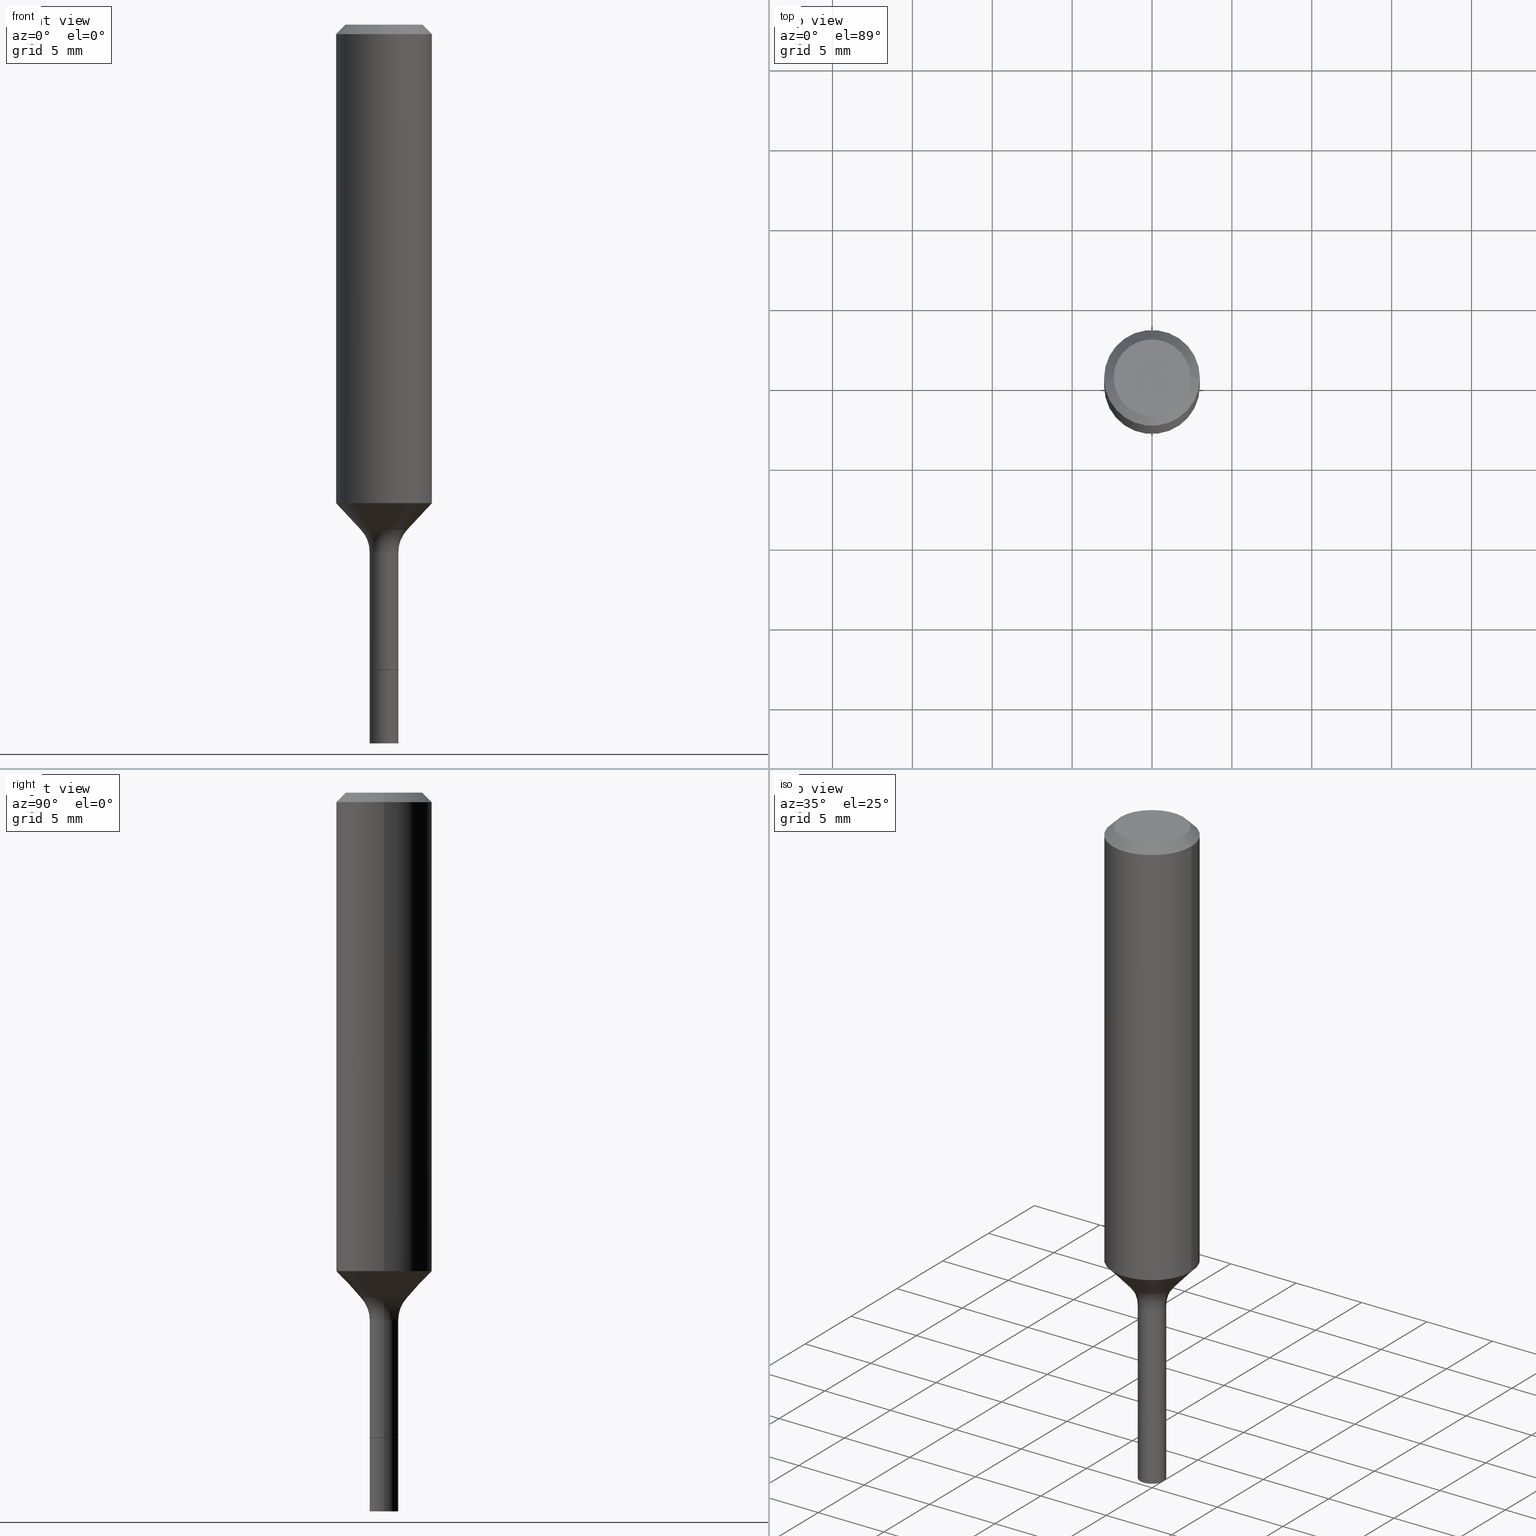
[diagram: canonical four-view strip — front | top / right | iso, engineering-drawing reading convention]
A machine part, canonical four-view strip (front | top / right | iso — engineering-drawing reading convention). The complete STEP part file that produces these views, byte-faithful:
ISO-10303-21;
HEADER;
FILE_DESCRIPTION (( 'STEP AP203' ),
    '1' );
FILE_NAME ('67063.STEP',
    '2025-04-01T15:27:15',
    ( '' ),
    ( '' ),
    'SwSTEP 2.0',
    'SolidWorks 2024',
    '' );
FILE_SCHEMA (( 'CONFIG_CONTROL_DESIGN' ));
ENDSEC;

DATA;
#1 = VECTOR ( 'NONE', #312, 39.37007874015748143 ) ;
#2 = COORDINATED_UNIVERSAL_TIME_OFFSET ( 5, 0, .BEHIND. ) ;
#3 = EDGE_CURVE ( 'NONE', #313, #306, #412, .T. ) ;
#4 = ORIENTED_EDGE ( 'NONE', *, *, #28, .T. ) ;
#5 = DIRECTION ( 'NONE',  ( 1.000000000000000000, -6.982962677686267499E-15, 0.000000000000000000 ) ) ;
#6 = EDGE_CURVE ( 'NONE', #144, #515, #182, .T. ) ;
#7 = APPROVAL_ROLE ( '' ) ;
#8 = CARTESIAN_POINT ( 'NONE',  ( 3.178375807398822119E-29, -4.537878296094436237E-15, -1.299700000000000077 ) ) ;
#9 = DIRECTION ( 'NONE',  ( 1.000000000000000000, -6.982962677686273021E-15, 0.000000000000000000 ) ) ;
#10 = DATE_AND_TIME ( #410, #62 ) ;
#11 = CARTESIAN_POINT ( 'NONE',  ( 3.890007229998696371E-29, -5.553899365697792335E-15, -1.590700000000000003 ) ) ;
#12 = DIRECTION ( 'NONE',  ( 1.000000000000000000, -6.982962677686266711E-15, 0.000000000000000000 ) ) ;
#13 = CIRCLE ( 'NONE', #432, 0.03495000000000000190 ) ;
#14 = CIRCLE ( 'NONE', #317, 0.07999999999999994615 ) ;
#15 = CARTESIAN_POINT ( 'NONE',  ( 0.000000000000000000, 0.000000000000000000, 0.000000000000000000 ) ) ;
#16 = EDGE_CURVE ( 'NONE', #393, #55, #269, .T. ) ;
#17 = ORIENTED_EDGE ( 'NONE', *, *, #87, .F. ) ;
#18 = CARTESIAN_POINT ( 'NONE',  ( 0.1180999999999999966, -8.926936027602933910E-16, -0.02362000000000013741 ) ) ;
#19 = DIRECTION ( 'NONE',  ( -2.445468806185136597E-29, 3.491481338843145583E-15, 1.000000000000000000 ) ) ;
#20 = APPROVAL_PERSON_ORGANIZATION ( #162, #23, #164 ) ;
#21 = CARTESIAN_POINT ( 'NONE',  ( -0.03545000000000005091, -5.302011965870836161E-15, -1.590700000000000003 ) ) ;
#22 = CYLINDRICAL_SURFACE ( 'NONE', #333, 0.03545000000000005091 ) ;
#23 = APPROVAL ( #484, 'UNSPECIFIED' ) ;
#24 = CARTESIAN_POINT ( 'NONE',  ( 0.000000000000000000, 0.000000000000000000, 0.000000000000000000 ) ) ;
#25 = CIRCLE ( 'NONE', #127, 0.03495000000000000190 ) ;
#26 = ORIENTED_EDGE ( 'NONE', *, *, #194, .T. ) ;
#27 = CC_DESIGN_SECURITY_CLASSIFICATION ( #136, ( #507 ) ) ;
#28 = EDGE_CURVE ( 'NONE', #55, #163, #118, .T. ) ;
#29 = CARTESIAN_POINT ( 'NONE',  ( 4.332637083918206427E-29, -6.185857488028401081E-15, -1.771700000000000053 ) ) ;
#30 = LINE ( 'NONE', #346, #1 ) ;
#31 = AXIS2_PLACEMENT_3D ( 'NONE', #246, #296, #47 ) ;
#32 = EDGE_LOOP ( 'NONE', ( #268, #254, #120, #155 ) ) ;
#33 = ORIENTED_EDGE ( 'NONE', *, *, #299, .T. ) ;
#34 = APPROVAL ( #446, 'UNSPECIFIED' ) ;
#35 = PERSON_AND_ORGANIZATION_ROLE ( 'design_owner' ) ;
#36 = VERTEX_POINT ( 'NONE', #212 ) ;
#37 = CALENDAR_DATE ( 2025, 1, 4 ) ;
#38 = ADVANCED_FACE ( 'NONE', ( #126 ), #178, .F. ) ;
#39 = VECTOR ( 'NONE', #257, 39.37007874015748143 ) ;
#40 = VERTEX_POINT ( 'NONE', #174 ) ;
#41 = CIRCLE ( 'NONE', #490, 0.05694170387046649379 ) ;
#42 = CARTESIAN_POINT ( 'NONE',  ( 0.03545000000000010643, -6.433403514952379754E-15, -1.771700000000000053 ) ) ;
#43 = CARTESIAN_POINT ( 'NONE',  ( 3.890007229998696371E-29, -5.553899365697792335E-15, -1.590700000000000003 ) ) ;
#44 = APPROVAL_ROLE ( '' ) ;
#45 = EDGE_CURVE ( 'NONE', #40, #214, #288, .T. ) ;
#46 = DIRECTION ( 'NONE',  ( -0.7071067811865461294, 2.468850131082242072E-15, -0.7071067811865489050 ) ) ;
#47 = DIRECTION ( 'NONE',  ( 1.000000000000000000, -6.982962677686273021E-15, 0.000000000000000000 ) ) ;
#48 = CIRCLE ( 'NONE', #483, 0.1181000000000001354 ) ;
#49 = CARTESIAN_POINT ( 'NONE',  ( 3.044951350166641227E-29, -4.347383532312049754E-15, -1.245140131195000333 ) ) ;
#50 = CARTESIAN_POINT ( 'NONE',  ( 0.03545000000000000234, -5.801445392621770218E-15, -1.590700000000000003 ) ) ;
#51 = EDGE_CURVE ( 'NONE', #185, #190, #180, .T. ) ;
#52 = DIRECTION ( 'NONE',  ( -2.445468806185136597E-29, 3.491481338843145583E-15, 1.000000000000000000 ) ) ;
#53 = FACE_OUTER_BOUND ( 'NONE', #440, .T. ) ;
#54 = CARTESIAN_POINT ( 'NONE',  ( 0.03545000000000000234, -5.799699651952348715E-15, -1.590200000000000058 ) ) ;
#55 = VERTEX_POINT ( 'NONE', #422 ) ;
#56 = FACE_OUTER_BOUND ( 'NONE', #435, .T. ) ;
#57 = DIRECTION ( 'NONE',  ( -6.982962677686266711E-15, -1.000000000000000000, 3.491481338843145583E-15 ) ) ;
#58 = ORIENTED_EDGE ( 'NONE', *, *, #28, .F. ) ;
#59 = DIRECTION ( 'NONE',  ( 1.000000000000000000, -6.982962677686267499E-15, 0.000000000000000000 ) ) ;
#60 = DIRECTION ( 'NONE',  ( -1.000000000000000000, 6.982962677686266711E-15, 0.000000000000000000 ) ) ;
#61 = EDGE_CURVE ( 'NONE', #306, #313, #314, .T. ) ;
#62 = LOCAL_TIME ( 11, 27, 15.00000000000000000, #289 ) ;
#63 = ORIENTED_EDGE ( 'NONE', *, *, #265, .F. ) ;
#64 = DIRECTION ( 'NONE',  ( 1.000000000000000000, -6.982962677686254089E-15, 0.000000000000000000 ) ) ;
#65 = DIRECTION ( 'NONE',  ( -2.445468806185136597E-29, 3.491481338843145583E-15, 1.000000000000000000 ) ) ;
#66 = FACE_OUTER_BOUND ( 'NONE', #404, .T. ) ;
#67 = CIRCLE ( 'NONE', #152, 0.03545000000000010643 ) ;
#68 = CARTESIAN_POINT ( 'NONE',  ( 2.884567129420502109E-29, -4.118397371309408628E-15, -1.179555888067264524 ) ) ;
#69 = ORIENTED_EDGE ( 'NONE', *, *, #45, .T. ) ;
#70 = DIRECTION ( 'NONE',  ( -2.445468806185136597E-29, 3.491481338843145583E-15, 1.000000000000000000 ) ) ;
#71 = ORIENTED_EDGE ( 'NONE', *, *, #87, .T. ) ;
#72 = SECURITY_CLASSIFICATION_LEVEL ( 'unclassified' ) ;
#73 = CONICAL_SURFACE ( 'NONE', #160, 0.05694170387046649379, 0.7504915783575608623 ) ;
#74 = ORIENTED_EDGE ( 'NONE', *, *, #16, .F. ) ;
#75 =( NAMED_UNIT ( * ) PLANE_ANGLE_UNIT ( ) SI_UNIT ( $, .RADIAN. ) );
#76 = EDGE_LOOP ( 'NONE', ( #509, #444, #327, #506 ) ) ;
#77 = ADVANCED_FACE ( 'NONE', ( #458 ), #141, .T. ) ;
#78 = PERSON_AND_ORGANIZATION ( #273, #292 ) ;
#79 = AXIS2_PLACEMENT_3D ( 'NONE', #330, #234, #125 ) ;
#80 = ORIENTED_EDGE ( 'NONE', *, *, #338, .T. ) ;
#81 = ADVANCED_BREP_SHAPE_REPRESENTATION ( '67063', ( #124, #294, #79 ), #320 ) ;
#82 = PERSON_AND_ORGANIZATION ( #273, #292 ) ;
#83 = FACE_OUTER_BOUND ( 'NONE', #279, .T. ) ;
#84 = CIRCLE ( 'NONE', #503, 0.03544999999999996071 ) ;
#85 = CONICAL_SURFACE ( 'NONE', #450, 0.03495000000000000190, 0.7853981633975507526 ) ;
#86 = CALENDAR_DATE ( 2025, 1, 4 ) ;
#87 = EDGE_CURVE ( 'NONE', #36, #387, #301, .T. ) ;
#88 = DIRECTION ( 'NONE',  ( -2.445468806185136597E-29, 3.491481338843145583E-15, 1.000000000000000000 ) ) ;
#89 = PLANE ( 'NONE',  #224 ) ;
#90 = TOROIDAL_SURFACE ( 'NONE', #307, 0.1154499999999999832, 0.07999999999999994615 ) ;
#91 = CARTESIAN_POINT ( 'NONE',  ( 3.178375807398822119E-29, -4.537878296094436237E-15, -1.299700000000000077 ) ) ;
#92 = EDGE_CURVE ( 'NONE', #323, #266, #362, .T. ) ;
#93 = CARTESIAN_POINT ( 'NONE',  ( -0.03544999999999996071, -4.793128560734448544E-15, -1.299700000000000077 ) ) ;
#94 = DIRECTION ( 'NONE',  ( -1.000000000000000000, 6.982962677686266711E-15, 0.000000000000000000 ) ) ;
#95 = CARTESIAN_POINT ( 'NONE',  ( -0.05694170387046649379, -3.942788391842422324E-15, -1.245140131195000333 ) ) ;
#96 = APPROVAL_DATE_TIME ( #10, #34 ) ;
#97 = CARTESIAN_POINT ( 'NONE',  ( 7.545787641473140628E-46, -1.077338491108201769E-31, -3.085620075131671975E-17 ) ) ;
#98 = DIRECTION ( 'NONE',  ( -2.445468806185136597E-29, 3.491481338843145583E-15, 1.000000000000000000 ) ) ;
#99 = AXIS2_PLACEMENT_3D ( 'NONE', #8, #167, #334 ) ;
#100 = CARTESIAN_POINT ( 'NONE',  ( 5.776197320209326656E-31, -8.246878922347558061E-17, -0.02362000000000013741 ) ) ;
#101 = ADVANCED_FACE ( 'NONE', ( #139 ), #456, .T. ) ;
#102 = ORIENTED_EDGE ( 'NONE', *, *, #491, .T. ) ;
#103 = CARTESIAN_POINT ( 'NONE',  ( 0.09447999999999998066, -7.704367267948738690E-16, -3.085620075131172158E-17 ) ) ;
#104 = ORIENTED_EDGE ( 'NONE', *, *, #326, .F. ) ;
#105 = DIRECTION ( 'NONE',  ( -2.445468806185136597E-29, 3.491481338843145583E-15, 1.000000000000000000 ) ) ;
#106 = ORIENTED_EDGE ( 'NONE', *, *, #276, .F. ) ;
#107 = DIRECTION ( 'NONE',  ( -2.445468806185136597E-29, 3.491481338843145583E-15, 1.000000000000000000 ) ) ;
#108 = CLOSED_SHELL ( 'NONE', ( #77, #157, #175, #433, #414, #395, #345, #283, #110, #149, #101, #290, #229, #469 ) ) ;
#109 = ORIENTED_EDGE ( 'NONE', *, *, #187, .T. ) ;
#110 = ADVANCED_FACE ( 'NONE', ( #375 ), #390, .T. ) ;
#111 = DIRECTION ( 'NONE',  ( 1.000000000000000000, -6.982962677686262766E-15, 0.000000000000000000 ) ) ;
#112 = ORIENTED_EDGE ( 'NONE', *, *, #514, .T. ) ;
#113 = PERSON_AND_ORGANIZATION_ROLE ( 'creator' ) ;
#114 = ORIENTED_EDGE ( 'NONE', *, *, #61, .T. ) ;
#115 = DATE_TIME_ROLE ( 'classification_date' ) ;
#116 = EDGE_CURVE ( 'NONE', #214, #190, #172, .T. ) ;
#117 = TOROIDAL_SURFACE ( 'NONE', #99, 0.1154499999999999832, 0.07999999999999994615 ) ;
#118 = LINE ( 'NONE', #402, #472 ) ;
#119 = CALENDAR_DATE ( 2025, 1, 4 ) ;
#120 = ORIENTED_EDGE ( 'NONE', *, *, #51, .T. ) ;
#121 = PERSON_AND_ORGANIZATION ( #273, #292 ) ;
#122 = APPROVAL_PERSON_ORGANIZATION ( #78, #423, #44 ) ;
#123 = DIRECTION ( 'NONE',  ( 1.000000000000000000, -6.982962677686273021E-15, 0.000000000000000000 ) ) ;
#124 = MANIFOLD_SOLID_BREP ( 'Body-Move/Copy2[1]', #270 ) ;
#125 = DIRECTION ( 'NONE',  ( 1.000000000000000000, 0.000000000000000000, 0.000000000000000000 ) ) ;
#126 = FACE_OUTER_BOUND ( 'NONE', #445, .T. ) ;
#127 = AXIS2_PLACEMENT_3D ( 'NONE', #471, #430, #59 ) ;
#128 = CARTESIAN_POINT ( 'NONE',  ( 4.332637083918206427E-29, -6.185857488028401081E-15, -1.771700000000000053 ) ) ;
#129 = CC_DESIGN_DATE_AND_TIME_ASSIGNMENT ( #328, #115, ( #136 ) ) ;
#130 = LINE ( 'NONE', #250, #339 ) ;
#131 = EDGE_CURVE ( 'NONE', #40, #185, #13, .T. ) ;
#132 = DIRECTION ( 'NONE',  ( 2.438088387897960049E-29, -3.491481338843145188E-15, -1.000000000000000000 ) ) ;
#133 = DIRECTION ( 'NONE',  ( 1.000000000000000000, -6.982962677686254089E-15, 0.000000000000000000 ) ) ;
#134 = CARTESIAN_POINT ( 'NONE',  ( 3.178375807398822119E-29, -4.537878296094436237E-15, -1.299700000000000077 ) ) ;
#135 = DIRECTION ( 'NONE',  ( 1.000000000000000000, -6.982962677686254089E-15, 0.000000000000000000 ) ) ;
#136 = SECURITY_CLASSIFICATION ( '', '', #72 ) ;
#137 = EDGE_CURVE ( 'NONE', #55, #393, #442, .T. ) ;
#138 = DIRECTION ( 'NONE',  ( -2.445468806185136597E-29, 3.491481338843145583E-15, 1.000000000000000000 ) ) ;
#139 = FACE_OUTER_BOUND ( 'NONE', #363, .T. ) ;
#140 = ORIENTED_EDGE ( 'NONE', *, *, #137, .F. ) ;
#141 = CONICAL_SURFACE ( 'NONE', #441, 0.03495000000000000190, 0.7853981633975507526 ) ;
#142 = DIRECTION ( 'NONE',  ( 1.000000000000000000, -6.982962677686266711E-15, 0.000000000000000000 ) ) ;
#143 = AXIS2_PLACEMENT_3D ( 'NONE', #457, #52, #12 ) ;
#144 = VERTEX_POINT ( 'NONE', #418 ) ;
#145 = CYLINDRICAL_SURFACE ( 'NONE', #287, 0.03544999999999998153 ) ;
#146 = APPLICATION_CONTEXT ( 'configuration controlled 3d designs of mechanical parts and assemblies' ) ;
#147 = CC_DESIGN_APPROVAL ( #423, ( #309 ) ) ;
#148 = ORIENTED_EDGE ( 'NONE', *, *, #383, .F. ) ;
#149 = ADVANCED_FACE ( 'NONE', ( #53 ), #377, .T. ) ;
#150 = CARTESIAN_POINT ( 'NONE',  ( 0.05694170387046649379, -4.745005325243381161E-15, -1.245140131195000333 ) ) ;
#151 = AXIS2_PLACEMENT_3D ( 'NONE', #29, #517, #277 ) ;
#152 = AXIS2_PLACEMENT_3D ( 'NONE', #310, #223, #391 ) ;
#153 = CIRCLE ( 'NONE', #173, 0.1180999999999999966 ) ;
#154 = ORIENTED_EDGE ( 'NONE', *, *, #460, .T. ) ;
#155 = ORIENTED_EDGE ( 'NONE', *, *, #116, .F. ) ;
#156 = PERSON_AND_ORGANIZATION_ROLE ( 'classification_officer' ) ;
#157 = ADVANCED_FACE ( 'NONE', ( #244 ), #272, .T. ) ;
#158 = DIRECTION ( 'NONE',  ( -2.445468806185136597E-29, 3.491481338843145583E-15, 1.000000000000000000 ) ) ;
#159 = APPLICATION_PROTOCOL_DEFINITION ( 'international standard', 'config_control_design', 1994, #319 ) ;
#160 = AXIS2_PLACEMENT_3D ( 'NONE', #189, #351, #226 ) ;
#161 = ORIENTED_EDGE ( 'NONE', *, *, #222, .T. ) ;
#162 = PERSON_AND_ORGANIZATION ( #273, #292 ) ;
#163 = VERTEX_POINT ( 'NONE', #386 ) ;
#164 = APPROVAL_ROLE ( '' ) ;
#165 = CARTESIAN_POINT ( 'NONE',  ( 0.1154499999999999832, -5.344061337233315773E-15, -1.299700000000000077 ) ) ;
#166 = AXIS2_PLACEMENT_3D ( 'NONE', #204, #304, #94 ) ;
#167 = DIRECTION ( 'NONE',  ( -2.445468806185136597E-29, 3.491481338843145583E-15, 1.000000000000000000 ) ) ;
#168 = ADVANCED_FACE ( 'NONE', ( #366 ), #22, .T. ) ;
#169 = CARTESIAN_POINT ( 'NONE',  ( 3.772893820736570314E-46, -5.386692455541008845E-32, -1.542810037565835988E-17 ) ) ;
#170 = DIRECTION ( 'NONE',  ( -2.445468806185136877E-29, 3.491481338843145188E-15, 1.000000000000000000 ) ) ;
#171 = CARTESIAN_POINT ( 'NONE',  ( 3.888784495595604691E-29, -5.552153625028370831E-15, -1.590200000000000058 ) ) ;
#172 = CIRCLE ( 'NONE', #192, 0.03545000000000000234 ) ;
#173 = AXIS2_PLACEMENT_3D ( 'NONE', #467, #138, #142 ) ;
#174 = CARTESIAN_POINT ( 'NONE',  ( -0.03495000000000000190, -5.302915452375525859E-15, -1.590700000000000003 ) ) ;
#175 = ADVANCED_FACE ( 'NONE', ( #83 ), #489, .T. ) ;
#176 = ORIENTED_EDGE ( 'NONE', *, *, #479, .T. ) ;
#177 = DIRECTION ( 'NONE',  ( -2.445468806185136597E-29, 3.491481338843145583E-15, 1.000000000000000000 ) ) ;
#178 = PLANE ( 'NONE',  #305 ) ;
#179 = FACE_OUTER_BOUND ( 'NONE', #281, .T. ) ;
#180 = LINE ( 'NONE', #216, #405 ) ;
#181 = ORIENTED_EDGE ( 'NONE', *, *, #373, .F. ) ;
#182 = CIRCLE ( 'NONE', #151, 0.03545000000000010643 ) ;
#183 = CARTESIAN_POINT ( 'NONE',  ( 3.888784495595604691E-29, -5.552153625028370831E-15, -1.590200000000000058 ) ) ;
#184 = AXIS2_PLACEMENT_3D ( 'NONE', #355, #397, #475 ) ;
#185 = VERTEX_POINT ( 'NONE', #218 ) ;
#186 = CARTESIAN_POINT ( 'NONE',  ( -0.1181000000000001354, -3.279246400376729248E-15, -1.179555888067264524 ) ) ;
#187 = EDGE_CURVE ( 'NONE', #36, #462, #48, .T. ) ;
#188 = ORIENTED_EDGE ( 'NONE', *, *, #239, .T. ) ;
#189 = CARTESIAN_POINT ( 'NONE',  ( 3.044951350166641227E-29, -4.347383532312049754E-15, -1.245140131195000333 ) ) ;
#190 = VERTEX_POINT ( 'NONE', #54 ) ;
#191 = DIRECTION ( 'NONE',  ( -1.000000000000000000, 7.105427357601003436E-15, 0.000000000000000000 ) ) ;
#192 = AXIS2_PLACEMENT_3D ( 'NONE', #171, #213, #135 ) ;
#193 = ORIENTED_EDGE ( 'NONE', *, *, #514, .F. ) ;
#194 = EDGE_CURVE ( 'NONE', #311, #462, #459, .T. ) ;
#195 = APPROVAL_STATUS ( 'not_yet_approved' ) ;
#196 = CARTESIAN_POINT ( 'NONE',  ( 3.890007229998696371E-29, -5.553899365697792335E-15, -1.590700000000000003 ) ) ;
#197 = ORIENTED_EDGE ( 'NONE', *, *, #439, .F. ) ;
#198 = PERSON_AND_ORGANIZATION_ROLE ( 'creator' ) ;
#199 = PRODUCT_RELATED_PRODUCT_CATEGORY ( 'detail', '', ( #210 ) ) ;
#200 = AXIS2_PLACEMENT_3D ( 'NONE', #165, #57, #382 ) ;
#201 = ORIENTED_EDGE ( 'NONE', *, *, #400, .T. ) ;
#202 = APPLICATION_PROTOCOL_DEFINITION ( 'international standard', 'config_control_design', 1994, #146 ) ;
#203 = ADVANCED_FACE ( 'NONE', ( #342 ), #409, .T. ) ;
#204 = CARTESIAN_POINT ( 'NONE',  ( 5.776197320209326656E-31, -8.246878922347558061E-17, -0.02362000000000013741 ) ) ;
#205 =( CONVERSION_BASED_UNIT ( 'INCH', #443 ) LENGTH_UNIT ( ) NAMED_UNIT ( #371 ) );
#206 = APPROVAL_PERSON_ORGANIZATION ( #284, #34, #7 ) ;
#207 = FACE_OUTER_BOUND ( 'NONE', #356, .T. ) ;
#208 = CIRCLE ( 'NONE', #473, 0.03544999999999996071 ) ;
#209 = CC_DESIGN_PERSON_AND_ORGANIZATION_ASSIGNMENT ( #236, #198, ( #309 ) ) ;
#210 = PRODUCT ( '67063', '67063', '', ( #401 ) ) ;
#211 = CARTESIAN_POINT ( 'NONE',  ( -0.05694170387046643828, -3.942788391842422324E-15, -1.245140131195000333 ) ) ;
#212 = CARTESIAN_POINT ( 'NONE',  ( 0.1181000000000001354, -4.943085263544158468E-15, -1.179555888067264524 ) ) ;
#213 = DIRECTION ( 'NONE',  ( -2.445468806185136597E-29, 3.491481338843145583E-15, 1.000000000000000000 ) ) ;
#214 = VERTEX_POINT ( 'NONE', #495 ) ;
#215 = DIRECTION ( 'NONE',  ( -0.6819983600624978104, 7.399397606724286576E-15, 0.7313537016191710149 ) ) ;
#216 = CARTESIAN_POINT ( 'NONE',  ( 0.03495000000000000190, -5.797953911282927211E-15, -1.590700000000000003 ) ) ;
#217 = ORIENTED_EDGE ( 'NONE', *, *, #3, .F. ) ;
#218 = CARTESIAN_POINT ( 'NONE',  ( 0.03495000000000000190, -5.797953911282927211E-15, -1.590700000000000003 ) ) ;
#219 = DIRECTION ( 'NONE',  ( -2.445468806185136877E-29, 3.491481338843145188E-15, 1.000000000000000000 ) ) ;
#220 = DIRECTION ( 'NONE',  ( 1.000000000000000000, -6.982962677686267499E-15, 4.875432709231658792E-29 ) ) ;
#221 = DIRECTION ( 'NONE',  ( 1.000000000000000000, -6.982962677686266711E-15, 4.876176775795936914E-29 ) ) ;
#222 = EDGE_CURVE ( 'NONE', #323, #311, #41, .T. ) ;
#223 = DIRECTION ( 'NONE',  ( -2.445468806185136597E-29, 3.491481338843145583E-15, 1.000000000000000000 ) ) ;
#224 = AXIS2_PLACEMENT_3D ( 'NONE', #381, #493, #411 ) ;
#225 = EDGE_LOOP ( 'NONE', ( #480, #69, #181, #429 ) ) ;
#226 = DIRECTION ( 'NONE',  ( 1.000000000000000000, -6.982962677686273021E-15, 0.000000000000000000 ) ) ;
#227 = VERTEX_POINT ( 'NONE', #93 ) ;
#228 = CYLINDRICAL_SURFACE ( 'NONE', #184, 0.03544999999999998153 ) ;
#229 = ADVANCED_FACE ( 'NONE', ( #56 ), #89, .F. ) ;
#230 = ORIENTED_EDGE ( 'NONE', *, *, #326, .T. ) ;
#231 = PERSON_AND_ORGANIZATION ( #273, #292 ) ;
#232 = AXIS2_PLACEMENT_3D ( 'NONE', #183, #105, #64 ) ;
#233 = ORIENTED_EDGE ( 'NONE', *, *, #3, .T. ) ;
#234 = DIRECTION ( 'NONE',  ( 0.000000000000000000, 0.000000000000000000, 1.000000000000000000 ) ) ;
#235 = DIRECTION ( 'NONE',  ( 1.000000000000000000, -6.982962677686267499E-15, 4.875432709231658792E-29 ) ) ;
#236 = PERSON_AND_ORGANIZATION ( #273, #292 ) ;
#237 = EDGE_LOOP ( 'NONE', ( #350, #262 ) ) ;
#238 = DATE_AND_TIME ( #86, #245 ) ;
#239 = EDGE_CURVE ( 'NONE', #393, #387, #367, .T. ) ;
#240 = AXIS2_PLACEMENT_3D ( 'NONE', #261, #487, #123 ) ;
#241 = VECTOR ( 'NONE', #352, 39.37007874015748143 ) ;
#242 = CARTESIAN_POINT ( 'NONE',  ( 3.890007229998696371E-29, -5.553899365697792335E-15, -1.590700000000000003 ) ) ;
#243 = DATE_AND_TIME ( #37, #264 ) ;
#244 = FACE_OUTER_BOUND ( 'NONE', #341, .T. ) ;
#245 = LOCAL_TIME ( 11, 27, 15.00000000000000000, #478 ) ;
#246 = CARTESIAN_POINT ( 'NONE',  ( 3.044951350166641227E-29, -4.347383532312049754E-15, -1.245140131195000333 ) ) ;
#247 = ADVANCED_FACE ( 'NONE', ( #251 ), #335, .T. ) ;
#248 = AXIS2_PLACEMENT_3D ( 'NONE', #196, #357, #396 ) ;
#249 = VECTOR ( 'NONE', #316, 39.37007874015748854 ) ;
#250 = CARTESIAN_POINT ( 'NONE',  ( -0.03544999999999998153, 2.518873998269553846E-16, -1.743762489495363388E-30 ) ) ;
#251 = FACE_OUTER_BOUND ( 'NONE', #353, .T. ) ;
#252 = DIRECTION ( 'NONE',  ( 1.000000000000000000, -6.982962677686267499E-15, 0.000000000000000000 ) ) ;
#253 = CARTESIAN_POINT ( 'NONE',  ( 2.884567129420502109E-29, -4.118397371309408628E-15, -1.179555888067264524 ) ) ;
#254 = ORIENTED_EDGE ( 'NONE', *, *, #131, .T. ) ;
#255 = PRODUCT_DEFINITION_SHAPE ( 'NONE', 'NONE',  #309 ) ;
#256 = SHAPE_DEFINITION_REPRESENTATION ( #255, #81 ) ;
#257 = DIRECTION ( 'NONE',  ( -0.7071067811866199593, 7.493145998870616062E-15, 0.7071067811864750752 ) ) ;
#258 = ORIENTED_EDGE ( 'NONE', *, *, #194, .F. ) ;
#259 = AXIS2_PLACEMENT_3D ( 'NONE', #293, #177, #492 ) ;
#260 = CARTESIAN_POINT ( 'NONE',  ( 0.03545000000000005091, -5.801445392621771007E-15, -1.590700000000000003 ) ) ;
#261 = CARTESIAN_POINT ( 'NONE',  ( 3.044951350166641227E-29, -4.347383532312049754E-15, -1.245140131195000333 ) ) ;
#262 = ORIENTED_EDGE ( 'NONE', *, *, #16, .T. ) ;
#263 = DIRECTION ( 'NONE',  ( -2.445468806185136877E-29, 3.491481338843145188E-15, 1.000000000000000000 ) ) ;
#264 = LOCAL_TIME ( 11, 27, 15.00000000000000000, #2 ) ;
#265 = EDGE_CURVE ( 'NONE', #266, #227, #208, .T. ) ;
#266 = VERTEX_POINT ( 'NONE', #452 ) ;
#267 = DIRECTION ( 'NONE',  ( -2.445468806185136597E-29, 3.491481338843145583E-15, 1.000000000000000000 ) ) ;
#268 = ORIENTED_EDGE ( 'NONE', *, *, #45, .F. ) ;
#269 = CIRCLE ( 'NONE', #465, 0.09447999999999998066 ) ;
#270 = CLOSED_SHELL ( 'NONE', ( #247, #203, #168, #38 ) ) ;
#271 = DIRECTION ( 'NONE',  ( 1.000000000000000000, -6.982962677686267499E-15, 0.000000000000000000 ) ) ;
#272 = CONICAL_SURFACE ( 'NONE', #315, 0.1180999999999999966, 0.7853981633974463916 ) ;
#273 = PERSON ( 'UNSPECIFIED', 'UNSPECIFIED', 'UNSPECIFIED', ('UNSPECIFIED'), ('UNSPECIFIED'), ('UNSPECIFIED') ) ;
#274 = ORIENTED_EDGE ( 'NONE', *, *, #92, .F. ) ;
#275 = DIRECTION ( 'NONE',  ( 1.000000000000000000, -6.982962677686265133E-15, 0.000000000000000000 ) ) ;
#276 = EDGE_CURVE ( 'NONE', #311, #323, #348, .T. ) ;
#277 = DIRECTION ( 'NONE',  ( 1.000000000000000000, -6.982962677686261977E-15, 0.000000000000000000 ) ) ;
#278 = UNCERTAINTY_MEASURE_WITH_UNIT (LENGTH_MEASURE( 1.000000000000000082E-05 ), #205, 'distance_accuracy_value', 'NONE');
#279 = EDGE_LOOP ( 'NONE', ( #109, #176, #104, #17 ) ) ;
#280 = CIRCLE ( 'NONE', #232, 0.03545000000000000234 ) ;
#281 = EDGE_LOOP ( 'NONE', ( #399, #33, #63, #197 ) ) ;
#282 = ORIENTED_EDGE ( 'NONE', *, *, #239, .F. ) ;
#283 = ADVANCED_FACE ( 'NONE', ( #207 ), #117, .F. ) ;
#284 = PERSON_AND_ORGANIZATION ( #273, #292 ) ;
#285 = DIRECTION ( 'NONE',  ( -2.445468806185136597E-29, 3.491481338843145583E-15, 1.000000000000000000 ) ) ;
#286 = CALENDAR_DATE ( 2025, 1, 4 ) ;
#287 = AXIS2_PLACEMENT_3D ( 'NONE', #24, #501, #221 ) ;
#288 = LINE ( 'NONE', #407, #39 ) ;
#289 = COORDINATED_UNIVERSAL_TIME_OFFSET ( 5, 0, .BEHIND. ) ;
#290 = ADVANCED_FACE ( 'NONE', ( #453 ), #370, .F. ) ;
#291 = DIRECTION ( 'NONE',  ( 1.000000000000000000, -6.982962677686262766E-15, 0.000000000000000000 ) ) ;
#292 = ORGANIZATION ( 'UNSPECIFIED', 'UNSPECIFIED', '' ) ;
#293 = CARTESIAN_POINT ( 'NONE',  ( 3.890007229998696371E-29, -5.553899365697792335E-15, -1.590700000000000003 ) ) ;
#294 = MANIFOLD_SOLID_BREP ( 'Body-Move/Copy2[2]', #108 ) ;
#295 = AXIS2_PLACEMENT_3D ( 'NONE', #15, #19, #496 ) ;
#296 = DIRECTION ( 'NONE',  ( -2.445468806185136597E-29, 3.491481338843145583E-15, 1.000000000000000000 ) ) ;
#297 = DIRECTION ( 'NONE',  ( -2.445468806185136877E-29, 3.491481338843145188E-15, 1.000000000000000000 ) ) ;
#298 = DIRECTION ( 'NONE',  ( 1.000000000000000000, -6.982962677686265133E-15, 0.000000000000000000 ) ) ;
#299 = EDGE_CURVE ( 'NONE', #214, #227, #130, .T. ) ;
#300 = CC_DESIGN_APPROVAL ( #23, ( #507 ) ) ;
#301 = LINE ( 'NONE', #461, #368 ) ;
#302 = ORIENTED_EDGE ( 'NONE', *, *, #6, .F. ) ;
#303 = LINE ( 'NONE', #260, #513 ) ;
#304 = DIRECTION ( 'NONE',  ( 2.445468806185136597E-29, -3.491481338843145583E-15, -1.000000000000000000 ) ) ;
#305 = AXIS2_PLACEMENT_3D ( 'NONE', #43, #499, #494 ) ;
#306 = VERTEX_POINT ( 'NONE', #415 ) ;
#307 = AXIS2_PLACEMENT_3D ( 'NONE', #504, #267, #388 ) ;
#308 = CARTESIAN_POINT ( 'NONE',  ( -0.1154499999999999832, -3.717556707659400199E-15, -1.299700000000000077 ) ) ;
#309 = PRODUCT_DEFINITION ( 'UNKNOWN', '', #507, #477 ) ;
#310 = CARTESIAN_POINT ( 'NONE',  ( 4.332637083918206427E-29, -6.185857488028401081E-15, -1.771700000000000053 ) ) ;
#311 = VERTEX_POINT ( 'NONE', #211 ) ;
#312 = DIRECTION ( 'NONE',  ( -2.445468806185136877E-29, 3.491481338843145188E-15, 1.000000000000000000 ) ) ;
#313 = VERTEX_POINT ( 'NONE', #50 ) ;
#314 = CIRCLE ( 'NONE', #448, 0.03545000000000000234 ) ;
#315 = AXIS2_PLACEMENT_3D ( 'NONE', #100, #343, #60 ) ;
#316 = DIRECTION ( 'NONE',  ( 0.6819983600624978104, -2.208861293262468309E-15, 0.7313537016191710149 ) ) ;
#317 = AXIS2_PLACEMENT_3D ( 'NONE', #308, #385, #191 ) ;
#318 = EDGE_LOOP ( 'NONE', ( #258, #485, #201, #384 ) ) ;
#319 = APPLICATION_CONTEXT ( 'configuration controlled 3d designs of mechanical parts and assemblies' ) ;
#320 =( GEOMETRIC_REPRESENTATION_CONTEXT ( 3 ) GLOBAL_UNCERTAINTY_ASSIGNED_CONTEXT ( ( #278 ) ) GLOBAL_UNIT_ASSIGNED_CONTEXT ( ( #205, #75, #358 ) ) REPRESENTATION_CONTEXT ( 'NONE', 'WORKASPACE' ) );
#321 = ORIENTED_EDGE ( 'NONE', *, *, #187, .F. ) ;
#322 = COORDINATED_UNIVERSAL_TIME_OFFSET ( 5, 0, .BEHIND. ) ;
#323 = VERTEX_POINT ( 'NONE', #336 ) ;
#324 = APPROVAL_DATE_TIME ( #361, #423 ) ;
#325 = AXIS2_PLACEMENT_3D ( 'NONE', #169, #417, #374 ) ;
#326 = EDGE_CURVE ( 'NONE', #387, #163, #354, .T. ) ;
#327 = ORIENTED_EDGE ( 'NONE', *, *, #439, .T. ) ;
#328 = DATE_AND_TIME ( #119, #416 ) ;
#329 = ORIENTED_EDGE ( 'NONE', *, *, #6, .T. ) ;
#330 = CARTESIAN_POINT ( 'NONE',  ( 0.000000000000000000, 0.000000000000000000, 0.000000000000000000 ) ) ;
#331 = CARTESIAN_POINT ( 'NONE',  ( 3.890007229998696371E-29, -5.553899365697792335E-15, -1.590700000000000003 ) ) ;
#332 = CC_DESIGN_DATE_AND_TIME_ASSIGNMENT ( #238, #364, ( #309 ) ) ;
#333 = AXIS2_PLACEMENT_3D ( 'NONE', #331, #285, #447 ) ;
#334 = DIRECTION ( 'NONE',  ( 1.000000000000000000, -6.982962677686266711E-15, 4.883557194083112340E-29 ) ) ;
#335 = CYLINDRICAL_SURFACE ( 'NONE', #259, 0.03545000000000005091 ) ;
#336 = CARTESIAN_POINT ( 'NONE',  ( 0.05694170387046643828, -4.745005325243380372E-15, -1.245140131195000333 ) ) ;
#337 = DIRECTION ( 'NONE',  ( -2.445468806185136597E-29, 3.491481338843145583E-15, 1.000000000000000000 ) ) ;
#338 = EDGE_CURVE ( 'NONE', #227, #266, #84, .T. ) ;
#339 = VECTOR ( 'NONE', #170, 39.37007874015748143 ) ;
#340 = DIRECTION ( 'NONE',  ( -2.445468806185136597E-29, 3.491481338843145583E-15, 1.000000000000000000 ) ) ;
#341 = EDGE_LOOP ( 'NONE', ( #74, #188, #230, #58 ) ) ;
#342 = FACE_OUTER_BOUND ( 'NONE', #431, .T. ) ;
#343 = DIRECTION ( 'NONE',  ( 2.445468806185136597E-29, -3.491481338843145583E-15, -1.000000000000000000 ) ) ;
#344 = ORIENTED_EDGE ( 'NONE', *, *, #131, .F. ) ;
#345 = ADVANCED_FACE ( 'NONE', ( #436 ), #145, .T. ) ;
#346 = CARTESIAN_POINT ( 'NONE',  ( 0.03544999999999998153, -2.475460269239780314E-16, 1.728604667019658740E-30 ) ) ;
#347 = ORIENTED_EDGE ( 'NONE', *, *, #488, .T. ) ;
#348 = CIRCLE ( 'NONE', #31, 0.05694170387046649379 ) ;
#349 = LINE ( 'NONE', #150, #249 ) ;
#350 = ORIENTED_EDGE ( 'NONE', *, *, #137, .T. ) ;
#351 = DIRECTION ( 'NONE',  ( -2.445468806185136597E-29, 3.491481338843145583E-15, 1.000000000000000000 ) ) ;
#352 = DIRECTION ( 'NONE',  ( -2.445468806185136877E-29, 3.491481338843145188E-15, 1.000000000000000000 ) ) ;
#353 = EDGE_LOOP ( 'NONE', ( #154, #347, #217, #193 ) ) ;
#354 = CIRCLE ( 'NONE', #143, 0.1180999999999999966 ) ;
#355 = CARTESIAN_POINT ( 'NONE',  ( 0.000000000000000000, 0.000000000000000000, 0.000000000000000000 ) ) ;
#356 = EDGE_LOOP ( 'NONE', ( #476, #468, #518, #500 ) ) ;
#357 = DIRECTION ( 'NONE',  ( -2.445468806185136597E-29, 3.491481338843145583E-15, 1.000000000000000000 ) ) ;
#358 =( NAMED_UNIT ( * ) SI_UNIT ( $, .STERADIAN. ) SOLID_ANGLE_UNIT ( ) );
#359 = EDGE_CURVE ( 'NONE', #462, #36, #378, .T. ) ;
#360 = ORIENTED_EDGE ( 'NONE', *, *, #460, .F. ) ;
#361 = DATE_AND_TIME ( #286, #372 ) ;
#362 = CIRCLE ( 'NONE', #200, 0.07999999999999994615 ) ;
#363 = EDGE_LOOP ( 'NONE', ( #282, #140, #4, #474 ) ) ;
#364 = DATE_TIME_ROLE ( 'creation_date' ) ;
#365 = CC_DESIGN_PERSON_AND_ORGANIZATION_ASSIGNMENT ( #82, #35, ( #210 ) ) ;
#366 = FACE_OUTER_BOUND ( 'NONE', #420, .T. ) ;
#367 = LINE ( 'NONE', #18, #413 ) ;
#368 = VECTOR ( 'NONE', #297, 39.37007874015748143 ) ;
#369 = AXIS2_PLACEMENT_3D ( 'NONE', #97, #337, #220 ) ;
#370 = PLANE ( 'NONE',  #325 ) ;
#371 = DIMENSIONAL_EXPONENTS ( 1.000000000000000000, 0.000000000000000000, 0.000000000000000000, 0.000000000000000000, 0.000000000000000000, 0.000000000000000000, 0.000000000000000000 ) ;
#372 = LOCAL_TIME ( 11, 27, 15.00000000000000000, #322 ) ;
#373 = EDGE_CURVE ( 'NONE', #190, #214, #280, .T. ) ;
#374 = DIRECTION ( 'NONE',  ( -1.000000000000000000, 6.982962677686265922E-15, -4.876176775795935793E-29 ) ) ;
#375 = FACE_OUTER_BOUND ( 'NONE', #318, .T. ) ;
#376 = DIRECTION ( 'NONE',  ( -2.445468806185136597E-29, 3.491481338843145583E-15, 1.000000000000000000 ) ) ;
#377 = CYLINDRICAL_SURFACE ( 'NONE', #295, 0.1181000000000000660 ) ;
#378 = CIRCLE ( 'NONE', #466, 0.1181000000000001354 ) ;
#379 = VECTOR ( 'NONE', #219, 39.37007874015748143 ) ;
#380 = ORIENTED_EDGE ( 'NONE', *, *, #359, .T. ) ;
#381 = CARTESIAN_POINT ( 'NONE',  ( 3.890007229998696371E-29, -5.553899365697792335E-15, -1.590700000000000003 ) ) ;
#382 = DIRECTION ( 'NONE',  ( 1.000000000000000000, -6.982962677686264344E-15, 0.000000000000000000 ) ) ;
#383 = EDGE_CURVE ( 'NONE', #185, #40, #25, .T. ) ;
#384 = ORIENTED_EDGE ( 'NONE', *, *, #359, .F. ) ;
#385 = DIRECTION ( 'NONE',  ( 7.105427357601001859E-15, 1.000000000000000000, -3.491481338843145583E-15 ) ) ;
#386 = CARTESIAN_POINT ( 'NONE',  ( -0.1180999999999999966, -1.261282109333762859E-15, -0.02362000000000013741 ) ) ;
#387 = VERTEX_POINT ( 'NONE', #425 ) ;
#388 = DIRECTION ( 'NONE',  ( 1.000000000000000000, -6.982962677686266711E-15, 4.883557194083112340E-29 ) ) ;
#389 = ORIENTED_EDGE ( 'NONE', *, *, #61, .F. ) ;
#390 = CONICAL_SURFACE ( 'NONE', #240, 0.05694170387046649379, 0.7504915783575608623 ) ;
#391 = DIRECTION ( 'NONE',  ( 1.000000000000000000, -6.982962677686261977E-15, 0.000000000000000000 ) ) ;
#392 = CC_DESIGN_PERSON_AND_ORGANIZATION_ASSIGNMENT ( #438, #516, ( #507 ) ) ;
#393 = VERTEX_POINT ( 'NONE', #103 ) ;
#394 = CARTESIAN_POINT ( 'NONE',  ( -0.1181000000000000660, 8.391509709326787887E-16, -5.809262341591047287E-30 ) ) ;
#395 = ADVANCED_FACE ( 'NONE', ( #179 ), #228, .T. ) ;
#396 = DIRECTION ( 'NONE',  ( 1.000000000000000000, -6.982962677686254089E-15, 0.000000000000000000 ) ) ;
#397 = DIRECTION ( 'NONE',  ( -2.445468806185136597E-29, 3.491481338843145583E-15, 1.000000000000000000 ) ) ;
#398 = EDGE_LOOP ( 'NONE', ( #106, #102, #80, #274 ) ) ;
#399 = ORIENTED_EDGE ( 'NONE', *, *, #373, .T. ) ;
#400 = EDGE_CURVE ( 'NONE', #323, #36, #349, .T. ) ;
#401 = MECHANICAL_CONTEXT ( 'NONE', #146, 'mechanical' ) ;
#402 = CARTESIAN_POINT ( 'NONE',  ( -0.1180999999999999966, 7.422191030112725094E-16, -0.02362000000000013741 ) ) ;
#403 = APPROVAL_DATE_TIME ( #243, #23 ) ;
#404 = EDGE_LOOP ( 'NONE', ( #161, #26, #321, #497 ) ) ;
#405 = VECTOR ( 'NONE', #451, 39.37007874015748143 ) ;
#406 =( LENGTH_UNIT ( ) NAMED_UNIT ( * ) SI_UNIT ( $, .METRE. ) );
#407 = CARTESIAN_POINT ( 'NONE',  ( -0.03495000000000000190, -5.305564679549637060E-15, -1.590700000000000003 ) ) ;
#408 = CARTESIAN_POINT ( 'NONE',  ( 0.000000000000000000, 0.000000000000000000, 0.000000000000000000 ) ) ;
#409 = PLANE ( 'NONE',  #511 ) ;
#410 = CALENDAR_DATE ( 2025, 1, 4 ) ;
#411 = DIRECTION ( 'NONE',  ( 1.000000000000000000, -6.982962677686265922E-15, 4.876176775795935793E-29 ) ) ;
#412 = CIRCLE ( 'NONE', #248, 0.03545000000000000234 ) ;
#413 = VECTOR ( 'NONE', #455, 39.37007874015748143 ) ;
#414 = ADVANCED_FACE ( 'NONE', ( #463 ), #90, .F. ) ;
#415 = CARTESIAN_POINT ( 'NONE',  ( -0.03545000000000000234, -5.617991027036140929E-15, -1.590700000000000003 ) ) ;
#416 = LOCAL_TIME ( 11, 27, 15.00000000000000000, #481 ) ;
#417 = DIRECTION ( 'NONE',  ( 2.438088387897960049E-29, -3.491481338843145188E-15, -1.000000000000000000 ) ) ;
#418 = CARTESIAN_POINT ( 'NONE',  ( -0.03545000000000010643, -5.617991027036140140E-15, -1.771700000000000053 ) ) ;
#419 = DIRECTION ( 'NONE',  ( -2.445468806185136597E-29, 3.491481338843145583E-15, 1.000000000000000000 ) ) ;
#420 = EDGE_LOOP ( 'NONE', ( #482, #329, #112, #389 ) ) ;
#421 = DIRECTION ( 'NONE',  ( -1.000000000000000000, 6.982962677686265922E-15, -4.876176775795935793E-29 ) ) ;
#422 = CARTESIAN_POINT ( 'NONE',  ( -0.09447999999999998066, 7.009847083995354710E-16, -3.085620075132147757E-17 ) ) ;
#423 = APPROVAL ( #195, 'UNSPECIFIED' ) ;
#424 = VECTOR ( 'NONE', #215, 39.37007874015748854 ) ;
#425 = CARTESIAN_POINT ( 'NONE',  ( 0.1180999999999999966, -9.071566814582237199E-16, -0.02362000000000013741 ) ) ;
#426 = DIRECTION ( 'NONE',  ( -2.445468806185136597E-29, 3.491481338843145583E-15, 1.000000000000000000 ) ) ;
#427 = ORIENTED_EDGE ( 'NONE', *, *, #505, .F. ) ;
#428 = CARTESIAN_POINT ( 'NONE',  ( 3.890007229998696371E-29, -5.553899365697792335E-15, -1.590700000000000003 ) ) ;
#429 = ORIENTED_EDGE ( 'NONE', *, *, #51, .F. ) ;
#430 = DIRECTION ( 'NONE',  ( -2.445468806185136597E-29, 3.491481338843145583E-15, 1.000000000000000000 ) ) ;
#431 = EDGE_LOOP ( 'NONE', ( #360, #302 ) ) ;
#432 = AXIS2_PLACEMENT_3D ( 'NONE', #464, #426, #252 ) ;
#433 = ADVANCED_FACE ( 'NONE', ( #66 ), #73, .T. ) ;
#434 = LINE ( 'NONE', #394, #241 ) ;
#435 = EDGE_LOOP ( 'NONE', ( #148, #344 ) ) ;
#436 = FACE_OUTER_BOUND ( 'NONE', #76, .T. ) ;
#437 = ORIENTED_EDGE ( 'NONE', *, *, #479, .F. ) ;
#438 = PERSON_AND_ORGANIZATION ( #273, #292 ) ;
#439 = EDGE_CURVE ( 'NONE', #190, #266, #30, .T. ) ;
#440 = EDGE_LOOP ( 'NONE', ( #437, #380, #71, #427 ) ) ;
#441 = AXIS2_PLACEMENT_3D ( 'NONE', #11, #88, #5 ) ;
#442 = CIRCLE ( 'NONE', #369, 0.09447999999999998066 ) ;
#443 = LENGTH_MEASURE_WITH_UNIT ( LENGTH_MEASURE( 0.02539999999999999897 ), #406 );
#444 = ORIENTED_EDGE ( 'NONE', *, *, #116, .T. ) ;
#445 = EDGE_LOOP ( 'NONE', ( #233, #114 ) ) ;
#446 = APPROVAL_STATUS ( 'not_yet_approved' ) ;
#447 = DIRECTION ( 'NONE',  ( 1.000000000000000000, -6.982962677686273021E-15, 0.000000000000000000 ) ) ;
#448 = AXIS2_PLACEMENT_3D ( 'NONE', #242, #340, #133 ) ;
#449 = AXIS2_PLACEMENT_3D ( 'NONE', #408, #65, #470 ) ;
#450 = AXIS2_PLACEMENT_3D ( 'NONE', #428, #98, #271 ) ;
#451 = DIRECTION ( 'NONE',  ( 0.7071067811866199593, -2.468850131083015945E-15, 0.7071067811864750752 ) ) ;
#452 = CARTESIAN_POINT ( 'NONE',  ( 0.03544999999999996071, -4.785424323018414120E-15, -1.299700000000000077 ) ) ;
#453 = FACE_OUTER_BOUND ( 'NONE', #237, .T. ) ;
#454 = CC_DESIGN_PERSON_AND_ORGANIZATION_ASSIGNMENT ( #121, #113, ( #507 ) ) ;
#455 = DIRECTION ( 'NONE',  ( 0.7071067811865461294, -7.319954787623251312E-15, -0.7071067811865489050 ) ) ;
#456 = CONICAL_SURFACE ( 'NONE', #166, 0.1180999999999999966, 0.7853981633974463916 ) ;
#457 = CARTESIAN_POINT ( 'NONE',  ( 5.776197320209326656E-31, -8.246878922347558061E-17, -0.02362000000000013741 ) ) ;
#458 = FACE_OUTER_BOUND ( 'NONE', #225, .T. ) ;
#459 = LINE ( 'NONE', #95, #424 ) ;
#460 = EDGE_CURVE ( 'NONE', #515, #144, #67, .T. ) ;
#461 = CARTESIAN_POINT ( 'NONE',  ( 0.1181000000000000660, -8.246878922347485584E-16, 5.758764772215003944E-30 ) ) ;
#462 = VERTEX_POINT ( 'NONE', #186 ) ;
#463 = FACE_OUTER_BOUND ( 'NONE', #398, .T. ) ;
#464 = CARTESIAN_POINT ( 'NONE',  ( 3.890007229998696371E-29, -5.553899365697792335E-15, -1.590700000000000003 ) ) ;
#465 = AXIS2_PLACEMENT_3D ( 'NONE', #512, #158, #235 ) ;
#466 = AXIS2_PLACEMENT_3D ( 'NONE', #68, #70, #275 ) ;
#467 = CARTESIAN_POINT ( 'NONE',  ( 5.776197320209326656E-31, -8.246878922347558061E-17, -0.02362000000000013741 ) ) ;
#468 = ORIENTED_EDGE ( 'NONE', *, *, #222, .F. ) ;
#469 = ADVANCED_FACE ( 'NONE', ( #508 ), #85, .T. ) ;
#470 = DIRECTION ( 'NONE',  ( 1.000000000000000000, -6.982962677686266711E-15, 4.876176775795936353E-29 ) ) ;
#471 = CARTESIAN_POINT ( 'NONE',  ( 3.890007229998696371E-29, -5.553899365697792335E-15, -1.590700000000000003 ) ) ;
#472 = VECTOR ( 'NONE', #46, 39.37007874015748143 ) ;
#473 = AXIS2_PLACEMENT_3D ( 'NONE', #91, #376, #291 ) ;
#474 = ORIENTED_EDGE ( 'NONE', *, *, #505, .T. ) ;
#475 = DIRECTION ( 'NONE',  ( 1.000000000000000000, -6.982962677686266711E-15, 4.876176775795936914E-29 ) ) ;
#476 = ORIENTED_EDGE ( 'NONE', *, *, #491, .F. ) ;
#477 = DESIGN_CONTEXT ( 'detailed design', #319, 'design' ) ;
#478 = COORDINATED_UNIVERSAL_TIME_OFFSET ( 5, 0, .BEHIND. ) ;
#479 = EDGE_CURVE ( 'NONE', #462, #163, #434, .T. ) ;
#480 = ORIENTED_EDGE ( 'NONE', *, *, #383, .T. ) ;
#481 = COORDINATED_UNIVERSAL_TIME_OFFSET ( 5, 0, .BEHIND. ) ;
#482 = ORIENTED_EDGE ( 'NONE', *, *, #488, .F. ) ;
#483 = AXIS2_PLACEMENT_3D ( 'NONE', #253, #419, #298 ) ;
#484 = APPROVAL_STATUS ( 'not_yet_approved' ) ;
#485 = ORIENTED_EDGE ( 'NONE', *, *, #276, .T. ) ;
#486 = CC_DESIGN_APPROVAL ( #34, ( #136 ) ) ;
#487 = DIRECTION ( 'NONE',  ( -2.445468806185136597E-29, 3.491481338843145583E-15, 1.000000000000000000 ) ) ;
#488 = EDGE_CURVE ( 'NONE', #144, #306, #510, .T. ) ;
#489 = CYLINDRICAL_SURFACE ( 'NONE', #449, 0.1181000000000000660 ) ;
#490 = AXIS2_PLACEMENT_3D ( 'NONE', #49, #498, #9 ) ;
#491 = EDGE_CURVE ( 'NONE', #311, #227, #14, .T. ) ;
#492 = DIRECTION ( 'NONE',  ( 1.000000000000000000, -6.982962677686273021E-15, 0.000000000000000000 ) ) ;
#493 = DIRECTION ( 'NONE',  ( -2.438088387897960049E-29, 3.491481338843145188E-15, 1.000000000000000000 ) ) ;
#494 = DIRECTION ( 'NONE',  ( -1.000000000000000000, 6.982962677686265922E-15, -4.876176775795935793E-29 ) ) ;
#495 = CARTESIAN_POINT ( 'NONE',  ( -0.03545000000000000234, -4.793128560734448544E-15, -1.590200000000000058 ) ) ;
#496 = DIRECTION ( 'NONE',  ( 1.000000000000000000, -6.982962677686266711E-15, 4.876176775795936353E-29 ) ) ;
#497 = ORIENTED_EDGE ( 'NONE', *, *, #400, .F. ) ;
#498 = DIRECTION ( 'NONE',  ( -2.445468806185136597E-29, 3.491481338843145583E-15, 1.000000000000000000 ) ) ;
#499 = DIRECTION ( 'NONE',  ( 2.438088387897960049E-29, -3.491481338843145188E-15, -1.000000000000000000 ) ) ;
#500 = ORIENTED_EDGE ( 'NONE', *, *, #265, .T. ) ;
#501 = DIRECTION ( 'NONE',  ( -2.445468806185136597E-29, 3.491481338843145583E-15, 1.000000000000000000 ) ) ;
#502 = CC_DESIGN_PERSON_AND_ORGANIZATION_ASSIGNMENT ( #231, #156, ( #136 ) ) ;
#503 = AXIS2_PLACEMENT_3D ( 'NONE', #134, #107, #111 ) ;
#504 = CARTESIAN_POINT ( 'NONE',  ( 3.178375807398822119E-29, -4.537878296094436237E-15, -1.299700000000000077 ) ) ;
#505 = EDGE_CURVE ( 'NONE', #163, #387, #153, .T. ) ;
#506 = ORIENTED_EDGE ( 'NONE', *, *, #338, .F. ) ;
#507 = PRODUCT_DEFINITION_FORMATION_WITH_SPECIFIED_SOURCE ( 'ANY', '', #210, .NOT_KNOWN. ) ;
#508 = FACE_OUTER_BOUND ( 'NONE', #32, .T. ) ;
#509 = ORIENTED_EDGE ( 'NONE', *, *, #299, .F. ) ;
#510 = LINE ( 'NONE', #21, #379 ) ;
#511 = AXIS2_PLACEMENT_3D ( 'NONE', #128, #132, #421 ) ;
#512 = CARTESIAN_POINT ( 'NONE',  ( 7.545787641473140628E-46, -1.077338491108201769E-31, -3.085620075131671975E-17 ) ) ;
#513 = VECTOR ( 'NONE', #263, 39.37007874015748143 ) ;
#514 = EDGE_CURVE ( 'NONE', #515, #313, #303, .T. ) ;
#515 = VERTEX_POINT ( 'NONE', #42 ) ;
#516 = PERSON_AND_ORGANIZATION_ROLE ( 'design_supplier' ) ;
#517 = DIRECTION ( 'NONE',  ( -2.445468806185136597E-29, 3.491481338843145583E-15, 1.000000000000000000 ) ) ;
#518 = ORIENTED_EDGE ( 'NONE', *, *, #92, .T. ) ;
ENDSEC;
END-ISO-10303-21;
